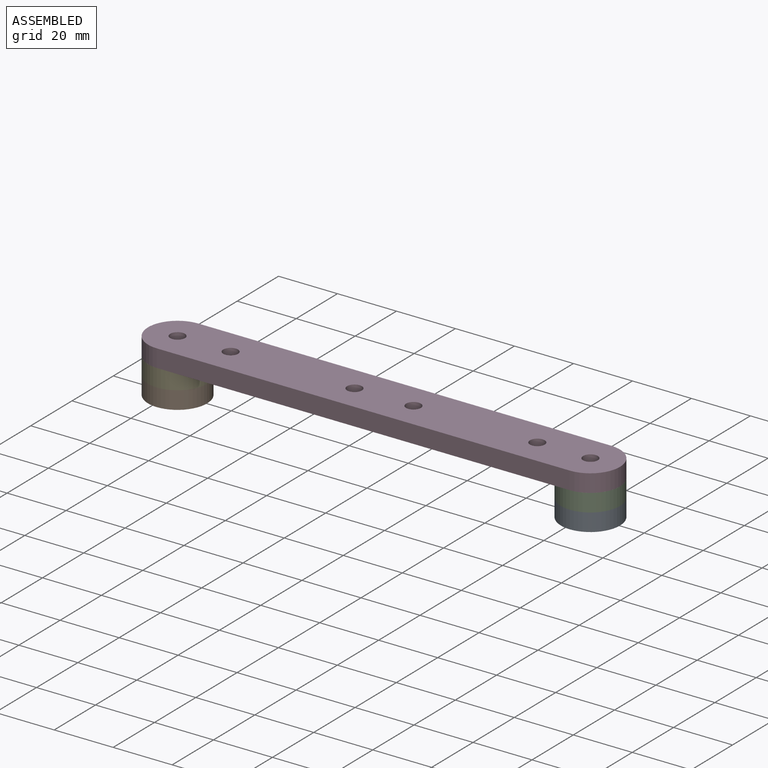
[diagram: assembled view]
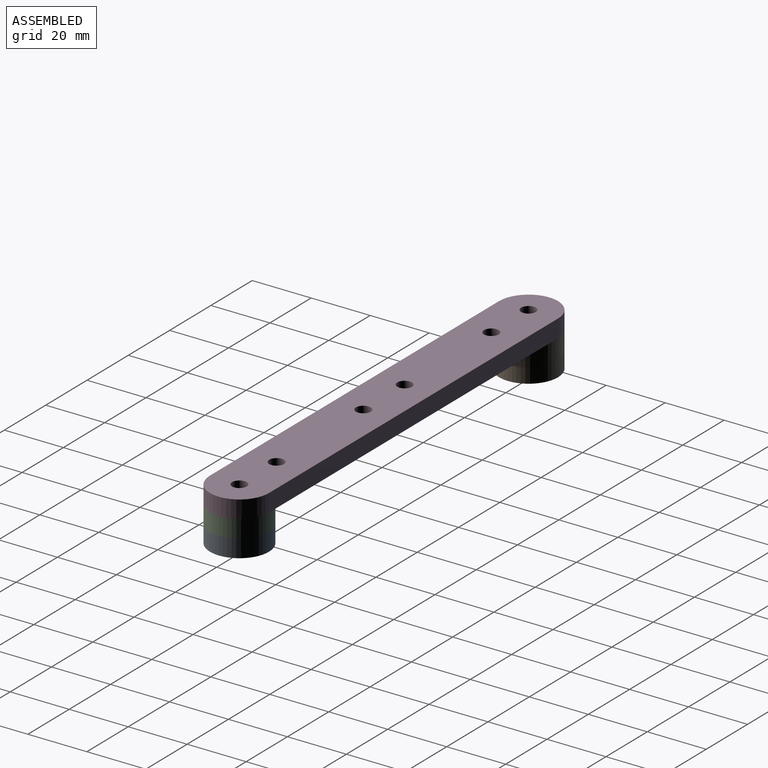
[diagram: assembled view, second angle]
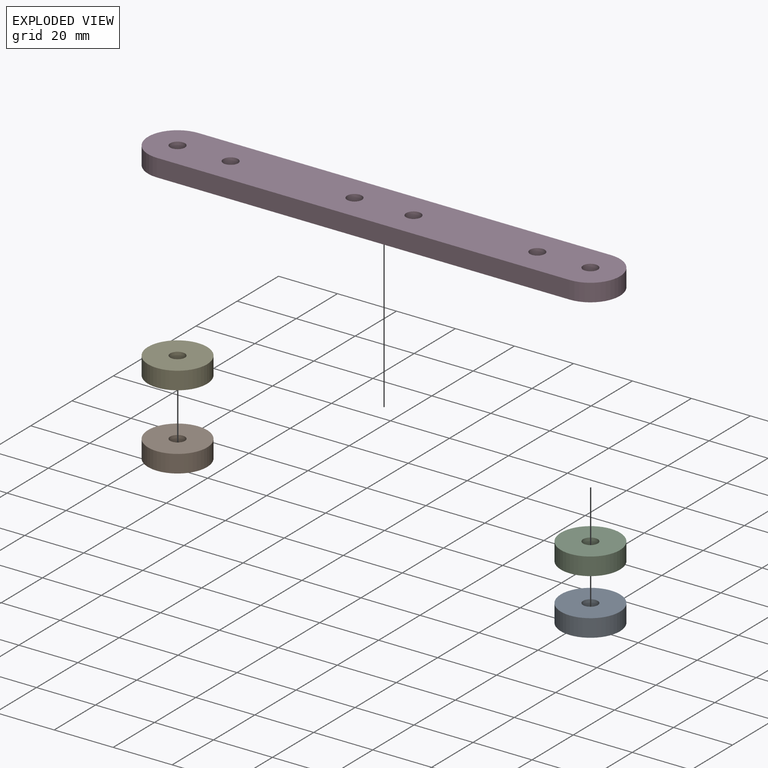
[diagram: exploded view]
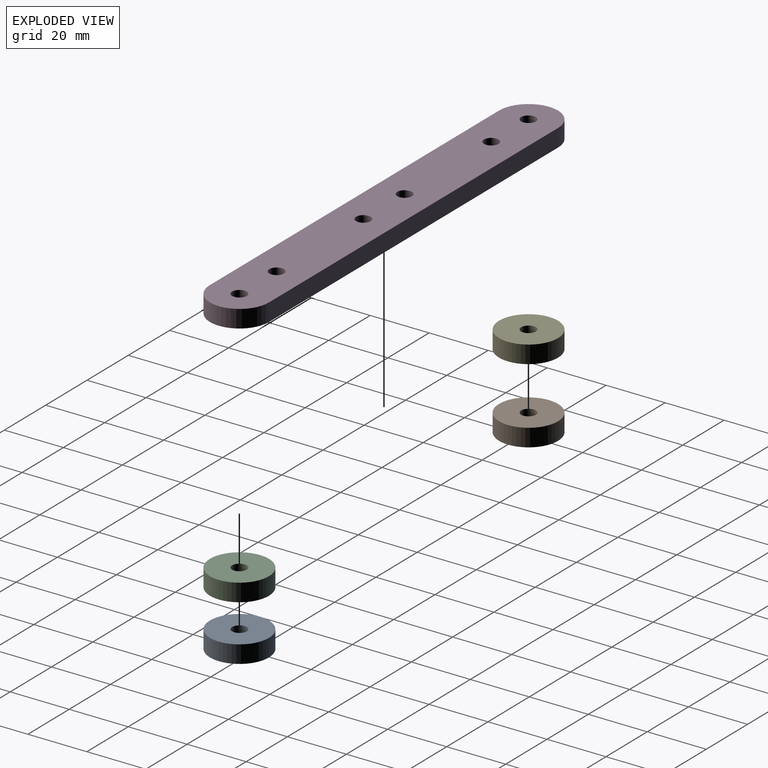
[diagram: exploded view, second angle]
ASSEMBLY  parts=5 mates=4
PART A: 4 faces, bbox 20x20x6 mm
  f0: cylinder r=10mm len=20mm, axis (0,0,-1), area 377mm2, adj f1,f2
  f1: plane 20x20mm, normal (0,0,1), area 294.5mm2, adj f0,f3
  f2: plane 20x20mm, normal (0,0,-1), area 294.5mm2, adj f0,f3
  f3: cylinder r=2.5mm len=6mm, axis (0,0,1), area 94.2mm2, adj f1,f2
PART B: same geometry as A
PART C: same geometry as A
PART D: 12 faces, bbox 160x20x6 mm
  f0: plane 160x20mm, normal (0,0,1), area 2996.3mm2, adj f2,f3,f4,f5,f6,f7,f8,f9
  f1: plane 160x20mm, normal (0,0,-1), area 2996.3mm2, adj f2,f3,f4,f5,f6,f7,f8,f9
  f2: plane 140x6mm, normal (0,1,0), area 840mm2, adj f0,f1,f3,f5
  f3: cylinder r=10mm len=20mm, axis (0,0,-1), area 188.5mm2, adj f0,f1,f2,f4
  f4: plane 140x6mm, normal (0,-1,0), area 840mm2, adj f0,f1,f3,f5
  f5: cylinder r=10mm len=20mm, axis (0,0,-1), area 188.5mm2, adj f0,f1,f2,f4
  f6: cylinder r=2.5mm len=6mm, axis (0,0,1), area 94.2mm2, adj f0,f1
  f7: cylinder r=2.5mm len=6mm, axis (0,0,1), area 94.2mm2, adj f0,f1
  f8: cylinder r=2.5mm len=6mm, axis (0,0,1), area 94.2mm2, adj f0,f1
  f9: cylinder r=2.5mm len=6mm, axis (0,0,1), area 94.2mm2, adj f0,f1
  f10: cylinder r=2.5mm len=6mm, axis (0,0,1), area 94.2mm2, adj f0,f1
  f11: cylinder r=2.5mm len=6mm, axis (0,0,1), area 94.2mm2, adj f0,f1
PART E: same geometry as A
PLACE A t=(43.84,-118.19,44.63)mm
PLACE B t=(-96.16,-118.19,44.63)mm
PLACE C t=(43.84,-118.19,50.63)mm
PLACE D t=(-10.79,-160.57,56.63)mm
PLACE E t=(-96.16,-118.19,50.63)mm
MATE revolute D.f3 <-> E.f0  axis (0,0,-1) through (-155.44,-101.07,56.63)mm
MATE revolute E.f0 <-> B.f0  axis (0,0,-1) through (-155.44,-101.07,50.63)mm
MATE revolute C.f0 <-> A.f0  axis (0,0,-1) through (-15.44,-101.07,50.63)mm
MATE revolute C.f0 <-> D.f5  axis (0,0,1) through (-15.44,-101.07,56.63)mm
